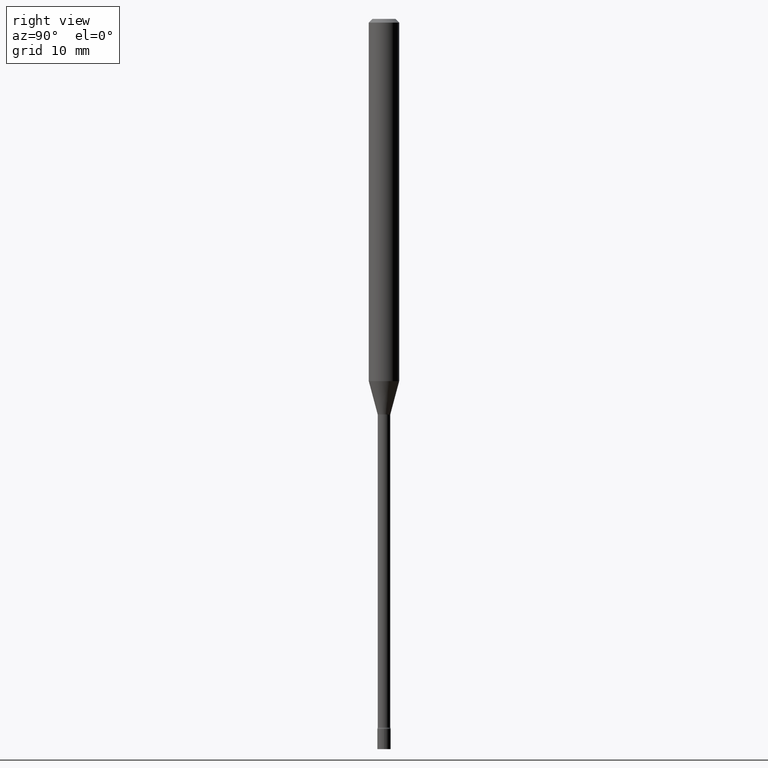
[diagram: clean part render]
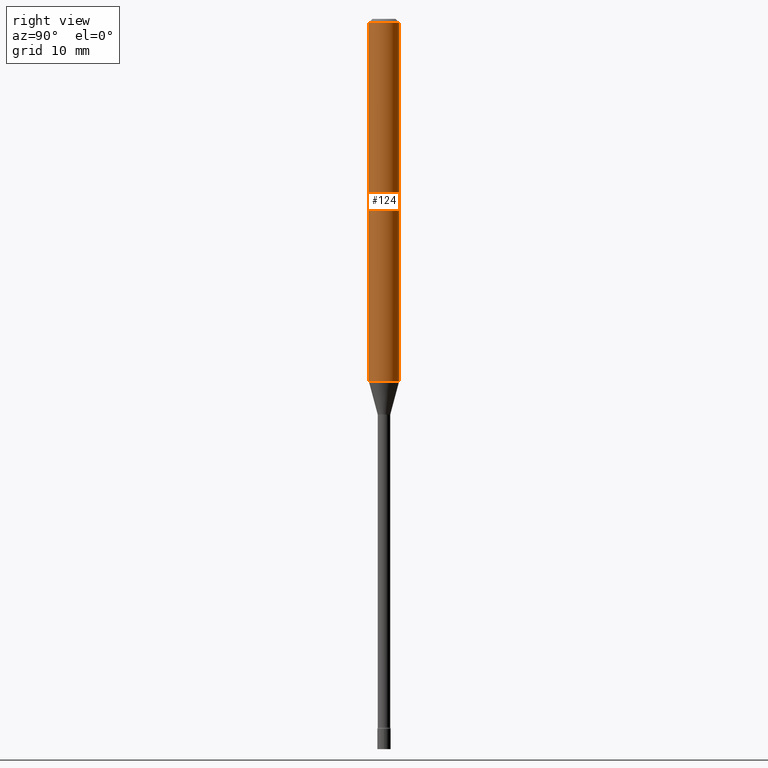
[diagram: same view with one face highlighted and labeled with its STEP entity id]
A machine part, right view. The second image highlights one B-rep face of the part: STEP entity #124.
In plain terms, the highlighted cylindrical surface (edge-blend (fillet) strip) has radius 1.5875 mm, axis along (-0, 0, 1).
Its self-contained STEP definition (entity closure, byte-faithful):
#2 = AXIS2_PLACEMENT_3D ( 'NONE', #436, #400, #68 ) ;
#9 = CIRCLE ( 'NONE', #498, 0.06250000000000000000 ) ;
#12 = LINE ( 'NONE', #262, #223 ) ;
#44 = EDGE_CURVE ( 'NONE', #183, #434, #9, .T. ) ;
#68 = DIRECTION ( 'NONE',  ( -6.982962677686265922E-15, -1.000000000000000000, 3.491538773805828826E-15 ) ) ;
#77 = DIRECTION ( 'NONE',  ( -2.445428699565055346E-29, 3.491538773805828826E-15, 1.000000000000000000 ) ) ;
#85 = CARTESIAN_POINT ( 'NONE',  ( 4.440892098500625669E-16, 0.06250000000000000000, -2.182211733628643017E-16 ) ) ;
#124 = ADVANCED_FACE ( 'NONE', ( #197 ), #484, .T. ) ;
#149 = CARTESIAN_POINT ( 'NONE',  ( 3.668143049347590078E-31, -5.237308160708754087E-17, -0.01500000000000003067 ) ) ;
#174 = EDGE_CURVE ( 'NONE', #510, #507, #260, .T. ) ;
#179 = ORIENTED_EDGE ( 'NONE', *, *, #44, .T. ) ;
#183 = VERTEX_POINT ( 'NONE', #487 ) ;
#197 = FACE_OUTER_BOUND ( 'NONE', #271, .T. ) ;
#217 = DIRECTION ( 'NONE',  ( -2.445428699565055346E-29, 3.491538773805828432E-15, 1.000000000000000000 ) ) ;
#219 = CARTESIAN_POINT ( 'NONE',  ( 4.440892098500988052E-16, 0.06249999999999477501, -1.488220337902601109 ) ) ;
#223 = VECTOR ( 'NONE', #217, 39.37007874015748143 ) ;
#225 = DIRECTION ( 'NONE',  ( -6.982962677686265922E-15, -1.000000000000000000, 4.370956789862821150E-15 ) ) ;
#245 = DIRECTION ( 'NONE',  ( -2.445428699565055346E-29, 3.491538773805828432E-15, 1.000000000000000000 ) ) ;
#260 = CIRCLE ( 'NONE', #373, 0.06250000000000000000 ) ;
#262 = CARTESIAN_POINT ( 'NONE',  ( -4.364351673553916201E-16, -0.06250000000000000000, 2.182211733628643017E-16 ) ) ;
#267 = DIRECTION ( 'NONE',  ( -2.445428699565055346E-29, 3.491538773805828826E-15, 1.000000000000000000 ) ) ;
#271 = EDGE_LOOP ( 'NONE', ( #179, #511, #360, #300 ) ) ;
#287 = LINE ( 'NONE', #85, #466 ) ;
#293 = CARTESIAN_POINT ( 'NONE',  ( -4.364351673553912750E-16, -0.06250000000000005551, -0.01499999999999981209 ) ) ;
#300 = ORIENTED_EDGE ( 'NONE', *, *, #370, .F. ) ;
#302 = CARTESIAN_POINT ( 'NONE',  ( 3.639336725583423874E-29, -5.196179013753343527E-15, -1.488220337902600887 ) ) ;
#347 = EDGE_CURVE ( 'NONE', #434, #507, #287, .T. ) ;
#360 = ORIENTED_EDGE ( 'NONE', *, *, #174, .F. ) ;
#370 = EDGE_CURVE ( 'NONE', #183, #510, #12, .T. ) ;
#373 = AXIS2_PLACEMENT_3D ( 'NONE', #149, #77, #479 ) ;
#400 = DIRECTION ( 'NONE',  ( -2.445428699565055346E-29, 3.491538773805828826E-15, 1.000000000000000000 ) ) ;
#421 = CARTESIAN_POINT ( 'NONE',  ( 4.440892098500992982E-16, 0.06249999999999995143, -0.01500000000000024751 ) ) ;
#434 = VERTEX_POINT ( 'NONE', #219 ) ;
#436 = CARTESIAN_POINT ( 'NONE',  ( 0.000000000000000000, 0.000000000000000000, 0.000000000000000000 ) ) ;
#466 = VECTOR ( 'NONE', #245, 39.37007874015748143 ) ;
#479 = DIRECTION ( 'NONE',  ( -6.982962677686265922E-15, -1.000000000000000000, 3.483106191921935554E-15 ) ) ;
#484 = CYLINDRICAL_SURFACE ( 'NONE', #2, 0.06250000000000000000 ) ;
#487 = CARTESIAN_POINT ( 'NONE',  ( -4.364351673553553325E-16, -0.06250000000000521805, -1.488220337902600443 ) ) ;
#498 = AXIS2_PLACEMENT_3D ( 'NONE', #302, #267, #225 ) ;
#507 = VERTEX_POINT ( 'NONE', #421 ) ;
#510 = VERTEX_POINT ( 'NONE', #293 ) ;
#511 = ORIENTED_EDGE ( 'NONE', *, *, #347, .T. ) ;